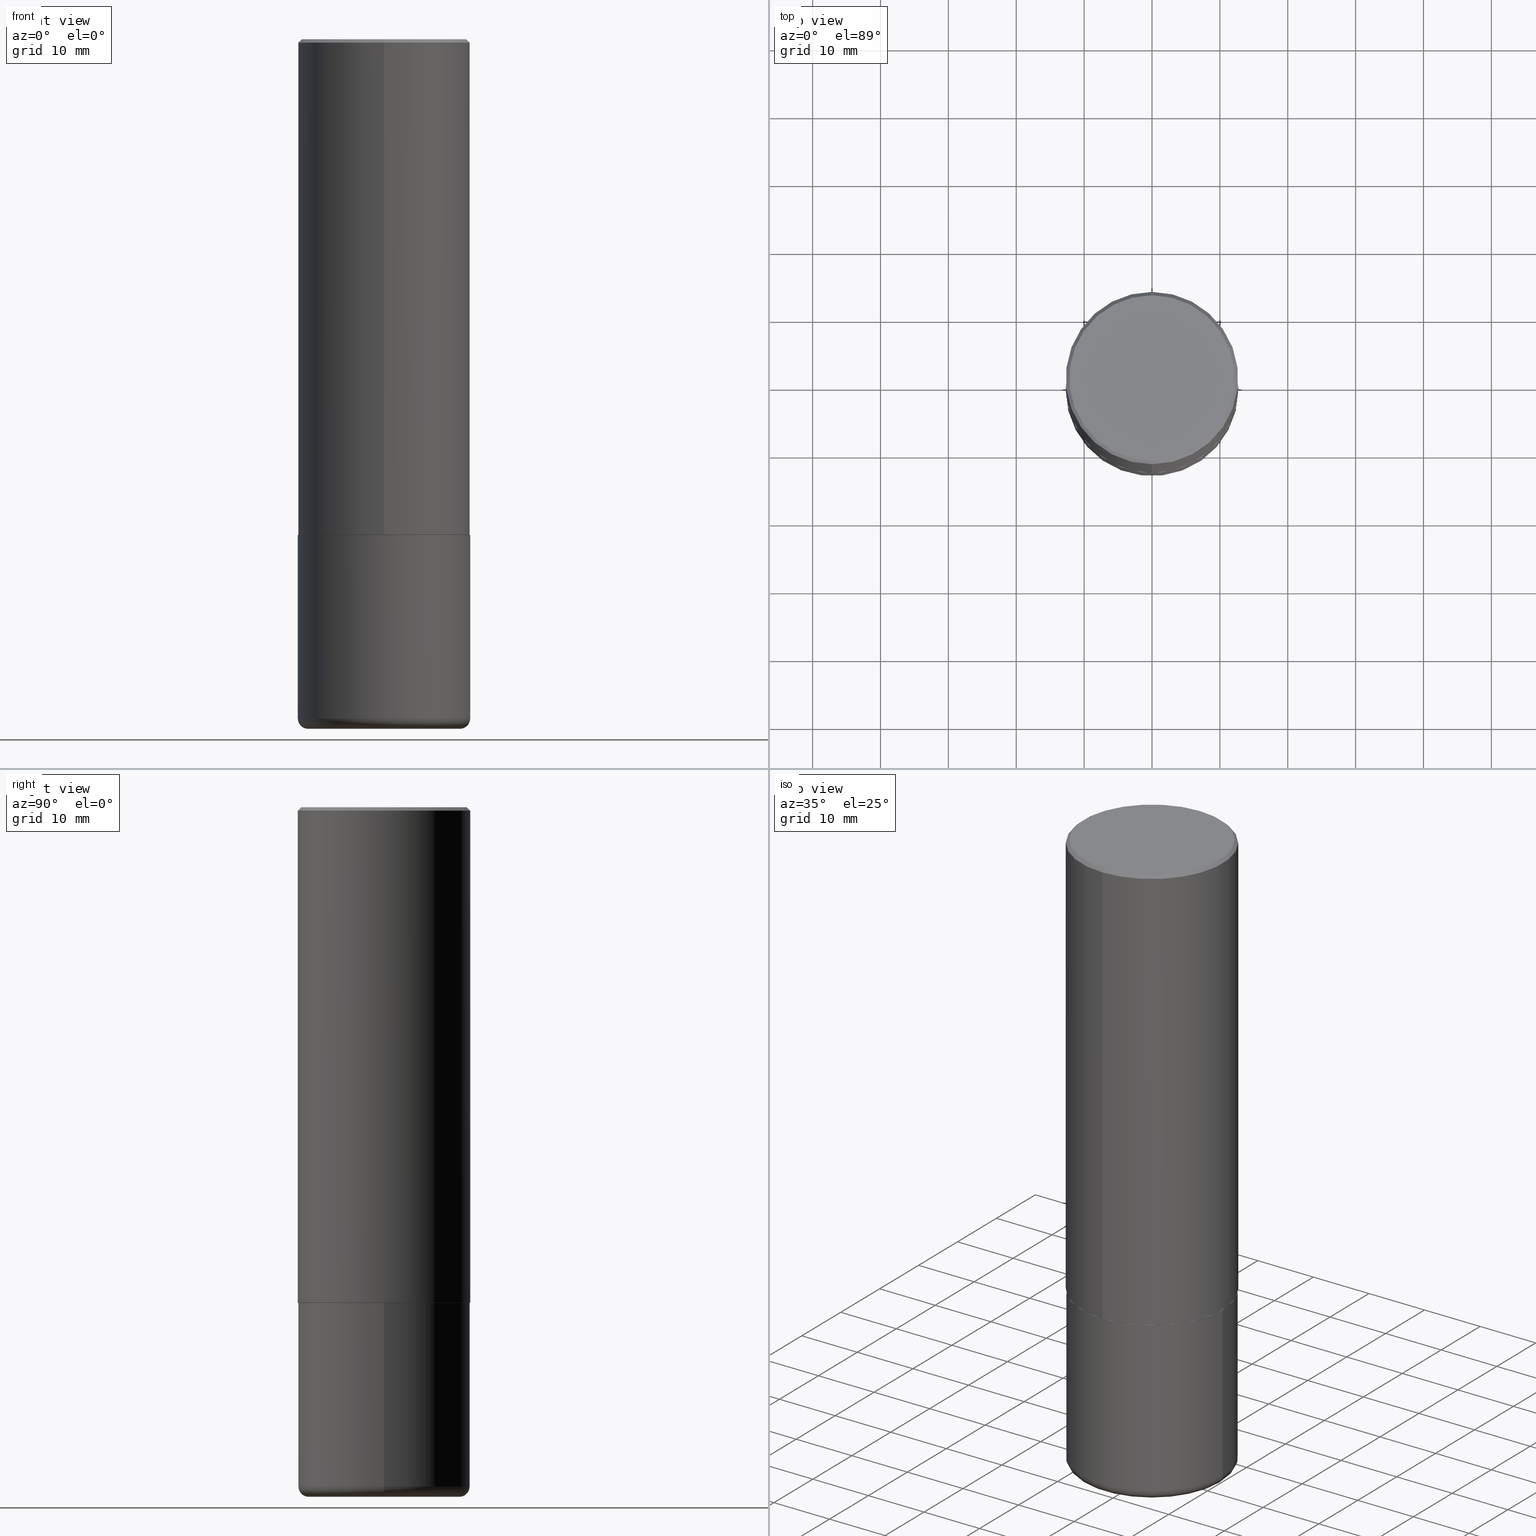
[diagram: canonical four-view strip — front | top / right | iso, engineering-drawing reading convention]
A machine part, canonical four-view strip (front | top / right | iso — engineering-drawing reading convention). The complete STEP part file that produces these views, byte-faithful:
ISO-10303-21;
HEADER;
FILE_DESCRIPTION (( 'STEP AP203' ),
    '1' );
FILE_NAME ('37125.STEP',
    '2024-03-01T20:36:01',
    ( '' ),
    ( '' ),
    'SwSTEP 2.0',
    'SolidWorks 2023',
    '' );
FILE_SCHEMA (( 'CONFIG_CONTROL_DESIGN' ));
ENDSEC;

DATA;
#1 = ORIENTED_EDGE ( 'NONE', *, *, #396, .F. ) ;
#2 = EDGE_CURVE ( 'NONE', #23, #84, #356, .T. ) ;
#3 = PERSON_AND_ORGANIZATION ( #291, #378 ) ;
#4 = CC_DESIGN_PERSON_AND_ORGANIZATION_ASSIGNMENT ( #67, #389, ( #255 ) ) ;
#5 = DIRECTION ( 'NONE',  ( -2.445184338623419792E-29, 3.491888712582412164E-15, 1.000000000000000000 ) ) ;
#6 = APPROVAL_ROLE ( '' ) ;
#7 = CARTESIAN_POINT ( 'NONE',  ( 3.421651712066270057E-15, 0.4799999999999998157, -1.419800293238684484E-15 ) ) ;
#8 = APPROVAL_STATUS ( 'not_yet_approved' ) ;
#9 = AXIS2_PLACEMENT_3D ( 'NONE', #322, #318, #32 ) ;
#10 = EDGE_CURVE ( 'NONE', #185, #320, #408, .T. ) ;
#11 = CARTESIAN_POINT ( 'NONE',  ( 9.781875224740547508E-29, -1.396592535537258391E-14, -4.000000000000000888 ) ) ;
#12 = CYLINDRICAL_SURFACE ( 'NONE', #209, 0.5000000000000002220 ) ;
#13 = DIRECTION ( 'NONE',  ( 1.000000000000000000, -6.982962677686266711E-15, 0.000000000000000000 ) ) ;
#14 = CIRCLE ( 'NONE', #89, 0.4989999999999999991 ) ;
#15 = CARTESIAN_POINT ( 'NONE',  ( 9.635147096369438236E-29, -1.375643647504199401E-14, -3.939999999999999947 ) ) ;
#16 = CARTESIAN_POINT ( 'NONE',  ( -3.361644018908049661E-15, -0.4799999999999998157, 1.932412870840429584E-15 ) ) ;
#17 = ORIENTED_EDGE ( 'NONE', *, *, #2, .F. ) ;
#18 = DIRECTION ( 'NONE',  ( -6.982962677686265133E-15, -1.000000000000000000, 3.491643216902135619E-15 ) ) ;
#19 = ORIENTED_EDGE ( 'NONE', *, *, #198, .F. ) ;
#20 = AXIS2_PLACEMENT_3D ( 'NONE', #165, #140, #72 ) ;
#21 = DIRECTION ( 'NONE',  ( -2.445468806185136597E-29, 3.491481338843145583E-15, 1.000000000000000000 ) ) ;
#22 = AXIS2_PLACEMENT_3D ( 'NONE', #163, #169, #42 ) ;
#23 = VERTEX_POINT ( 'NONE', #379 ) ;
#24 = ORIENTED_EDGE ( 'NONE', *, *, #303, .T. ) ;
#25 = ORIENTED_EDGE ( 'NONE', *, *, #10, .T. ) ;
#26 = EDGE_CURVE ( 'NONE', #155, #84, #203, .T. ) ;
#27 = ORIENTED_EDGE ( 'NONE', *, *, #375, .F. ) ;
#28 = CIRCLE ( 'NONE', #196, 0.4400000000000000022 ) ;
#29 = CC_DESIGN_SECURITY_CLASSIFICATION ( #45, ( #217 ) ) ;
#30 = DIMENSIONAL_EXPONENTS ( 1.000000000000000000, 0.000000000000000000, 0.000000000000000000, 0.000000000000000000, 0.000000000000000000, 0.000000000000000000, 0.000000000000000000 ) ;
#31 = EDGE_CURVE ( 'NONE', #270, #155, #122, .T. ) ;
#32 = DIRECTION ( 'NONE',  ( -6.982962677686265922E-15, -1.000000000000000000, 3.491888712582412558E-15 ) ) ;
#33 = CARTESIAN_POINT ( 'NONE',  ( 3.545608251442969735E-15, 0.4989999999999899516, -2.875000000000001332 ) ) ;
#34 = APPROVAL_ROLE ( '' ) ;
#35 = PLANE ( 'NONE',  #22 ) ;
#36 = CIRCLE ( 'NONE', #223, 0.4799999999999998157 ) ;
#37 = EDGE_CURVE ( 'NONE', #54, #23, #248, .T. ) ;
#38 = AXIS2_PLACEMENT_3D ( 'NONE', #116, #53, #211 ) ;
#39 = PERSON_AND_ORGANIZATION ( #291, #378 ) ;
#40 = CYLINDRICAL_SURFACE ( 'NONE', #121, 0.5000000000000000000 ) ;
#41 = DIRECTION ( 'NONE',  ( 0.000000000000000000, 0.000000000000000000, 1.000000000000000000 ) ) ;
#42 = DIRECTION ( 'NONE',  ( -1.000000000000000000, 6.982962677686265922E-15, -4.876176775795935793E-29 ) ) ;
#43 = FACE_OUTER_BOUND ( 'NONE', #81, .T. ) ;
#44 = AXIS2_PLACEMENT_3D ( 'NONE', #241, #177, #175 ) ;
#45 = SECURITY_CLASSIFICATION ( '', '', #164 ) ;
#46 = CARTESIAN_POINT ( 'NONE',  ( -0.4400000000000000022, -1.052163005713481670E-14, -4.000000000000000888 ) ) ;
#47 = DIRECTION ( 'NONE',  ( 2.438088387897960049E-29, -3.491481338843145188E-15, -1.000000000000000000 ) ) ;
#48 = DIRECTION ( 'NONE',  ( -6.982962677686265922E-15, -1.000000000000000000, 3.284787166730577015E-15 ) ) ;
#49 = AXIS2_PLACEMENT_3D ( 'NONE', #412, #125, #212 ) ;
#50 = LOCAL_TIME ( 15, 36, 1.000000000000000000, #392 ) ;
#51 = CARTESIAN_POINT ( 'NONE',  ( 0.5000000000000000000, -1.352949018801717646E-14, -2.875000000000000000 ) ) ;
#52 = ORIENTED_EDGE ( 'NONE', *, *, #375, .T. ) ;
#53 = DIRECTION ( 'NONE',  ( -2.445468806185136597E-29, 3.491481338843145583E-15, 1.000000000000000000 ) ) ;
#54 = VERTEX_POINT ( 'NONE', #158 ) ;
#55 = DIRECTION ( 'NONE',  ( 1.000000000000000000, -6.982962677686266711E-15, 0.000000000000000000 ) ) ;
#56 = ORIENTED_EDGE ( 'NONE', *, *, #414, .F. ) ;
#57 = AXIS2_PLACEMENT_3D ( 'NONE', #64, #41, #159 ) ;
#58 = EDGE_CURVE ( 'NONE', #270, #91, #184, .T. ) ;
#59 = CARTESIAN_POINT ( 'NONE',  ( -6.267161232665850175E-45, 8.949930368276549801E-31, 2.563062888008726491E-16 ) ) ;
#60 = FACE_OUTER_BOUND ( 'NONE', #101, .T. ) ;
#61 = DIRECTION ( 'NONE',  ( -2.445184338623419792E-29, 3.491888712582412164E-15, 1.000000000000000000 ) ) ;
#62 = CONICAL_SURFACE ( 'NONE', #82, 0.4989999999999999991, 0.7853981633977213939 ) ;
#63 = CARTESIAN_POINT ( 'NONE',  ( 4.890368677246865823E-31, -6.983777425164860418E-17, -0.02000000000000010797 ) ) ;
#64 = CARTESIAN_POINT ( 'NONE',  ( 0.000000000000000000, 0.000000000000000000, 0.000000000000000000 ) ) ;
#65 = ADVANCED_FACE ( 'NONE', ( #190 ), #66, .F. ) ;
#66 = PLANE ( 'NONE',  #9 ) ;
#67 = PERSON_AND_ORGANIZATION ( #291, #378 ) ;
#68 = CARTESIAN_POINT ( 'NONE',  ( -3.430248998885765387E-15, -0.5000000000000001110, -0.01999999999999835937 ) ) ;
#69 = PERSON_AND_ORGANIZATION ( #291, #378 ) ;
#70 = APPLICATION_CONTEXT ( 'configuration controlled 3d designs of mechanical parts and assemblies' ) ;
#71 = CARTESIAN_POINT ( 'NONE',  ( -3.491481338843134539E-15, -0.5000000000000002220, 1.745944356291206674E-15 ) ) ;
#72 = DIRECTION ( 'NONE',  ( 1.000000000000000000, -6.982962677686266711E-15, 4.876176775795935793E-29 ) ) ;
#73 = ADVANCED_FACE ( 'NONE', ( #413 ), #35, .F. ) ;
#74 = DIRECTION ( 'NONE',  ( -1.000000000000000000, 7.105427357600993970E-15, 0.000000000000000000 ) ) ;
#75 = VECTOR ( 'NONE', #265, 39.37007874015748143 ) ;
#76 = FACE_OUTER_BOUND ( 'NONE', #374, .T. ) ;
#77 = EDGE_CURVE ( 'NONE', #388, #372, #96, .T. ) ;
#78 = DIRECTION ( 'NONE',  ( -2.445184338623419792E-29, 3.491888712582412164E-15, 1.000000000000000000 ) ) ;
#79 = CC_DESIGN_PERSON_AND_ORGANIZATION_ASSIGNMENT ( #138, #99, ( #217 ) ) ;
#80 = DIRECTION ( 'NONE',  ( -2.445184338623419792E-29, 3.491888712582412164E-15, 1.000000000000000000 ) ) ;
#81 = EDGE_LOOP ( 'NONE', ( #126, #313, #187, #119 ) ) ;
#82 = AXIS2_PLACEMENT_3D ( 'NONE', #142, #5, #133 ) ;
#83 = DIRECTION ( 'NONE',  ( -6.982962677686265922E-15, -1.000000000000000000, 3.284787166730577015E-15 ) ) ;
#84 = VERTEX_POINT ( 'NONE', #107 ) ;
#85 = EDGE_CURVE ( 'NONE', #218, #388, #417, .T. ) ;
#86 = DIRECTION ( 'NONE',  ( -2.445184338623419792E-29, 3.491888712582412164E-15, 1.000000000000000000 ) ) ;
#87 = EDGE_CURVE ( 'NONE', #372, #388, #204, .T. ) ;
#88 = VERTEX_POINT ( 'NONE', #300 ) ;
#89 = AXIS2_PLACEMENT_3D ( 'NONE', #339, #401, #206 ) ;
#90 = CC_DESIGN_APPROVAL ( #346, ( #45 ) ) ;
#91 = VERTEX_POINT ( 'NONE', #7 ) ;
#92 = DIRECTION ( 'NONE',  ( -2.445184338623419792E-29, 3.491888712582412164E-15, 1.000000000000000000 ) ) ;
#93 = DIRECTION ( 'NONE',  ( -4.937700262165896205E-15, -0.7071067811867381980, 0.7071067811863568364 ) ) ;
#94 = PERSON_AND_ORGANIZATION_ROLE ( 'classification_officer' ) ;
#95 = ORIENTED_EDGE ( 'NONE', *, *, #26, .F. ) ;
#96 = CIRCLE ( 'NONE', #350, 0.5000000000000001110 ) ;
#97 = EDGE_CURVE ( 'NONE', #372, #253, #199, .T. ) ;
#98 = EDGE_LOOP ( 'NONE', ( #256, #152, #146, #343 ) ) ;
#99 = PERSON_AND_ORGANIZATION_ROLE ( 'design_supplier' ) ;
#100 = EDGE_CURVE ( 'NONE', #194, #253, #104, .T. ) ;
#101 = EDGE_LOOP ( 'NONE', ( #188, #250, #95, #19 ) ) ;
#102 = PERSON_AND_ORGANIZATION ( #291, #378 ) ;
#103 = CARTESIAN_POINT ( 'NONE',  ( 3.491481338843133750E-15, 0.5000000000000000000, -0.02000000000000185310 ) ) ;
#104 = CIRCLE ( 'NONE', #344, 0.5000000000000000000 ) ;
#105 = LOCAL_TIME ( 15, 36, 1.000000000000000000, #166 ) ;
#106 = FACE_OUTER_BOUND ( 'NONE', #252, .T. ) ;
#107 = CARTESIAN_POINT ( 'NONE',  ( 3.491481338843133750E-15, 0.5000000000000000000, -0.02000000000000185310 ) ) ;
#108 = FACE_OUTER_BOUND ( 'NONE', #276, .T. ) ;
#109 = AXIS2_PLACEMENT_3D ( 'NONE', #272, #381, #18 ) ;
#110 = ADVANCED_FACE ( 'NONE', ( #106 ), #12, .T. ) ;
#111 = CARTESIAN_POINT ( 'NONE',  ( 9.635147096369438236E-29, -1.375643647504199401E-14, -3.939999999999999947 ) ) ;
#112 = PRODUCT ( '37125', '37125', '', ( #193 ) ) ;
#113 = DIRECTION ( 'NONE',  ( -2.445184338623419792E-29, 3.491888712582412164E-15, 1.000000000000000000 ) ) ;
#114 = CARTESIAN_POINT ( 'NONE',  ( 9.781875224740547508E-29, -1.396592535537258391E-14, -4.000000000000000888 ) ) ;
#115 = CC_DESIGN_APPROVAL ( #221, ( #255 ) ) ;
#116 = CARTESIAN_POINT ( 'NONE',  ( 7.030722817782267716E-29, -1.003800884917404311E-14, -2.875000000000000000 ) ) ;
#117 = ORIENTED_EDGE ( 'NONE', *, *, #323, .T. ) ;
#118 = ADVANCED_FACE ( 'NONE', ( #76 ), #361, .T. ) ;
#119 = ORIENTED_EDGE ( 'NONE', *, *, #10, .F. ) ;
#120 = ORIENTED_EDGE ( 'NONE', *, *, #129, .F. ) ;
#121 = AXIS2_PLACEMENT_3D ( 'NONE', #395, #205, #237 ) ;
#122 = LINE ( 'NONE', #68, #331 ) ;
#123 = DIRECTION ( 'NONE',  ( 2.445184338623419231E-29, -3.491888712582412558E-15, -1.000000000000000000 ) ) ;
#124 = ORIENTED_EDGE ( 'NONE', *, *, #227, .T. ) ;
#125 = DIRECTION ( 'NONE',  ( -2.445184338623419792E-29, 3.491888712582412164E-15, 1.000000000000000000 ) ) ;
#126 = ORIENTED_EDGE ( 'NONE', *, *, #390, .T. ) ;
#127 = TOROIDAL_SURFACE ( 'NONE', #273, 0.4400000000000000022, 0.06000000000000024758 ) ;
#128 = DIRECTION ( 'NONE',  ( -6.982962677686265922E-15, -1.000000000000000000, 3.491888712582411769E-15 ) ) ;
#129 = EDGE_CURVE ( 'NONE', #88, #372, #305, .T. ) ;
#130 = CALENDAR_DATE ( 2024, 1, 3 ) ;
#131 = CARTESIAN_POINT ( 'NONE',  ( -3.484498376165376344E-15, -0.4990000000000100466, -2.874999999999998224 ) ) ;
#132 = APPROVAL_DATE_TIME ( #230, #154 ) ;
#133 = DIRECTION ( 'NONE',  ( -6.982962677686265922E-15, -1.000000000000000000, 3.284787166730577015E-15 ) ) ;
#134 = COORDINATED_UNIVERSAL_TIME_OFFSET ( 5, 0, .BEHIND. ) ;
#135 = CC_DESIGN_PERSON_AND_ORGANIZATION_ASSIGNMENT ( #39, #254, ( #217 ) ) ;
#136 = DIRECTION ( 'NONE',  ( -2.445468806185136597E-29, 3.491481338843145583E-15, 1.000000000000000000 ) ) ;
#137 = AXIS2_PLACEMENT_3D ( 'NONE', #150, #92, #48 ) ;
#138 = PERSON_AND_ORGANIZATION ( #291, #378 ) ;
#139 = DIRECTION ( 'NONE',  ( -2.445468806185136597E-29, 3.491481338843145583E-15, 1.000000000000000000 ) ) ;
#140 = DIRECTION ( 'NONE',  ( -2.445468806185136597E-29, 3.491481338843145583E-15, 1.000000000000000000 ) ) ;
#141 = ADVANCED_FACE ( 'NONE', ( #167 ), #40, .T. ) ;
#142 = CARTESIAN_POINT ( 'NONE',  ( 7.029904973542331656E-29, -1.003918004867443438E-14, -2.875000000000000000 ) ) ;
#143 = SHAPE_DEFINITION_REPRESENTATION ( #369, #213 ) ;
#144 = AXIS2_PLACEMENT_3D ( 'NONE', #15, #21, #404 ) ;
#145 = CARTESIAN_POINT ( 'NONE',  ( 9.635147096369438236E-29, -1.375643647504199401E-14, -3.939999999999999947 ) ) ;
#146 = ORIENTED_EDGE ( 'NONE', *, *, #129, .T. ) ;
#147 = FACE_OUTER_BOUND ( 'NONE', #98, .T. ) ;
#148 = EDGE_LOOP ( 'NONE', ( #315, #292 ) ) ;
#149 = VECTOR ( 'NONE', #288, 39.37007874015748143 ) ;
#150 = CARTESIAN_POINT ( 'NONE',  ( 7.029904973542331656E-29, -1.003918004867443438E-14, -2.875000000000000000 ) ) ;
#151 = ORIENTED_EDGE ( 'NONE', *, *, #31, .T. ) ;
#152 = ORIENTED_EDGE ( 'NONE', *, *, #179, .T. ) ;
#153 = ADVANCED_FACE ( 'NONE', ( #333 ), #202, .T. ) ;
#154 = APPROVAL ( #321, 'UNSPECIFIED' ) ;
#155 = VERTEX_POINT ( 'NONE', #302 ) ;
#156 = DIRECTION ( 'NONE',  ( -2.445184338623420072E-29, 3.491888712582412558E-15, 1.000000000000000000 ) ) ;
#157 = DIRECTION ( 'NONE',  ( -6.982962677686265922E-15, -1.000000000000000000, 3.491888712582411769E-15 ) ) ;
#158 = CARTESIAN_POINT ( 'NONE',  ( 3.549160965121771423E-15, 0.4989999999999899516, -2.875000000000001332 ) ) ;
#159 = DIRECTION ( 'NONE',  ( 1.000000000000000000, 0.000000000000000000, 0.000000000000000000 ) ) ;
#160 = DIRECTION ( 'NONE',  ( -2.445184338623419792E-29, 3.491888712582412164E-15, 1.000000000000000000 ) ) ;
#161 = COORDINATED_UNIVERSAL_TIME_OFFSET ( 5, 0, .BEHIND. ) ;
#162 = VECTOR ( 'NONE', #373, 39.37007874015748143 ) ;
#163 = CARTESIAN_POINT ( 'NONE',  ( 7.030722817782267716E-29, -1.003800884917404311E-14, -2.875000000000000000 ) ) ;
#164 = SECURITY_CLASSIFICATION_LEVEL ( 'unclassified' ) ;
#165 = CARTESIAN_POINT ( 'NONE',  ( 0.000000000000000000, 0.000000000000000000, 0.000000000000000000 ) ) ;
#166 = COORDINATED_UNIVERSAL_TIME_OFFSET ( 5, 0, .BEHIND. ) ;
#167 = FACE_OUTER_BOUND ( 'NONE', #338, .T. ) ;
#168 =( CONVERSION_BASED_UNIT ( 'INCH', #263 ) LENGTH_UNIT ( ) NAMED_UNIT ( #30 ) );
#169 = DIRECTION ( 'NONE',  ( 2.438088387897960049E-29, -3.491481338843145188E-15, -1.000000000000000000 ) ) ;
#170 = VECTOR ( 'NONE', #156, 39.37007874015748143 ) ;
#171 = CIRCLE ( 'NONE', #137, 0.4989999999999999991 ) ;
#172 = DIRECTION ( 'NONE',  ( 1.000000000000000000, -6.982962677686265133E-15, 0.000000000000000000 ) ) ;
#173 = LINE ( 'NONE', #103, #75 ) ;
#174 = EDGE_CURVE ( 'NONE', #91, #84, #173, .T. ) ;
#175 = DIRECTION ( 'NONE',  ( -6.982962677686265922E-15, -1.000000000000000000, 3.491888712582411769E-15 ) ) ;
#176 = CIRCLE ( 'NONE', #49, 0.5000000000000003331 ) ;
#177 = DIRECTION ( 'NONE',  ( -2.445184338623419792E-29, 3.491888712582412164E-15, 1.000000000000000000 ) ) ;
#178 = ORIENTED_EDGE ( 'NONE', *, *, #97, .F. ) ;
#179 = EDGE_CURVE ( 'NONE', #218, #88, #28, .T. ) ;
#180 = CARTESIAN_POINT ( 'NONE',  ( -6.267161232665850175E-45, 8.949930368276549801E-31, 2.563062888008726491E-16 ) ) ;
#181 = ORIENTED_EDGE ( 'NONE', *, *, #179, .F. ) ;
#182 = DIRECTION ( 'NONE',  ( 6.982962677686265133E-15, 1.000000000000000000, -3.491643216902135619E-15 ) ) ;
#183 = ORIENTED_EDGE ( 'NONE', *, *, #85, .T. ) ;
#184 = CIRCLE ( 'NONE', #316, 0.4799999999999998157 ) ;
#185 = VERTEX_POINT ( 'NONE', #330 ) ;
#186 = CC_DESIGN_DATE_AND_TIME_ASSIGNMENT ( #257, #415, ( #255 ) ) ;
#187 = ORIENTED_EDGE ( 'NONE', *, *, #245, .F. ) ;
#188 = ORIENTED_EDGE ( 'NONE', *, *, #245, .T. ) ;
#189 = FACE_OUTER_BOUND ( 'NONE', #380, .T. ) ;
#190 = FACE_OUTER_BOUND ( 'NONE', #148, .T. ) ;
#191 = ADVANCED_FACE ( 'NONE', ( #43 ), #62, .T. ) ;
#192 = DIRECTION ( 'NONE',  ( -4.851104656540951653E-15, -0.7071067811865482389, -0.7071067811865467956 ) ) ;
#193 = MECHANICAL_CONTEXT ( 'NONE', #70, 'mechanical' ) ;
#194 = VERTEX_POINT ( 'NONE', #231 ) ;
#195 = PERSON_AND_ORGANIZATION ( #291, #378 ) ;
#196 = AXIS2_PLACEMENT_3D ( 'NONE', #11, #295, #13 ) ;
#197 = EDGE_LOOP ( 'NONE', ( #307, #416 ) ) ;
#198 = EDGE_CURVE ( 'NONE', #320, #155, #359, .T. ) ;
#199 = LINE ( 'NONE', #366, #244 ) ;
#200 = CALENDAR_DATE ( 2024, 1, 3 ) ;
#201 = DIRECTION ( 'NONE',  ( 1.000000000000000000, -6.982962677686265133E-15, 0.000000000000000000 ) ) ;
#202 = PLANE ( 'NONE',  #377 ) ;
#203 = CIRCLE ( 'NONE', #383, 0.5000000000000001110 ) ;
#204 = CIRCLE ( 'NONE', #405, 0.5000000000000001110 ) ;
#205 = DIRECTION ( 'NONE',  ( -2.445468806185136597E-29, 3.491481338843145583E-15, 1.000000000000000000 ) ) ;
#206 = DIRECTION ( 'NONE',  ( -6.982962677686265922E-15, -1.000000000000000000, 3.284787166730577015E-15 ) ) ;
#207 = CARTESIAN_POINT ( 'NONE',  ( -0.5000000000000000000, 3.552713678800500929E-15, -2.459467545127452891E-29 ) ) ;
#208 = ORIENTED_EDGE ( 'NONE', *, *, #37, .F. ) ;
#209 = AXIS2_PLACEMENT_3D ( 'NONE', #258, #78, #391 ) ;
#210 = CC_DESIGN_PERSON_AND_ORGANIZATION_ASSIGNMENT ( #69, #387, ( #112 ) ) ;
#211 = DIRECTION ( 'NONE',  ( 1.000000000000000000, -6.982962677686266711E-15, 0.000000000000000000 ) ) ;
#212 = DIRECTION ( 'NONE',  ( -6.982962677686265922E-15, -1.000000000000000000, 3.278217592397113496E-15 ) ) ;
#213 = ADVANCED_BREP_SHAPE_REPRESENTATION ( '37125', ( #293, #284, #57 ), #351 ) ;
#214 = ADVANCED_FACE ( 'NONE', ( #108 ), #385, .T. ) ;
#215 = ORIENTED_EDGE ( 'NONE', *, *, #198, .T. ) ;
#216 = AXIS2_PLACEMENT_3D ( 'NONE', #240, #365, #74 ) ;
#217 = PRODUCT_DEFINITION_FORMATION_WITH_SPECIFIED_SOURCE ( 'ANY', '', #112, .NOT_KNOWN. ) ;
#218 = VERTEX_POINT ( 'NONE', #46 ) ;
#219 =( LENGTH_UNIT ( ) NAMED_UNIT ( * ) SI_UNIT ( $, .METRE. ) );
#220 = ORIENTED_EDGE ( 'NONE', *, *, #58, .F. ) ;
#221 = APPROVAL ( #8, 'UNSPECIFIED' ) ;
#222 = DATE_AND_TIME ( #329, #262 ) ;
#223 = AXIS2_PLACEMENT_3D ( 'NONE', #180, #86, #157 ) ;
#224 = ORIENTED_EDGE ( 'NONE', *, *, #174, .T. ) ;
#225 = ORIENTED_EDGE ( 'NONE', *, *, #87, .T. ) ;
#226 = DATE_AND_TIME ( #319, #105 ) ;
#227 = EDGE_CURVE ( 'NONE', #23, #320, #238, .T. ) ;
#228 = ADVANCED_FACE ( 'NONE', ( #189 ), #260, .T. ) ;
#229 = ORIENTED_EDGE ( 'NONE', *, *, #26, .T. ) ;
#230 = DATE_AND_TIME ( #130, #397 ) ;
#231 = CARTESIAN_POINT ( 'NONE',  ( -0.5000000000000000000, -8.344508983307518419E-15, -2.875000000000000000 ) ) ;
#232 = APPROVAL_PERSON_ORGANIZATION ( #233, #221, #418 ) ;
#233 = PERSON_AND_ORGANIZATION ( #291, #378 ) ;
#234 = DIRECTION ( 'NONE',  ( -2.445468806185136597E-29, 3.491481338843145583E-15, 1.000000000000000000 ) ) ;
#235 = DIRECTION ( 'NONE',  ( 2.445184338623419792E-29, -3.491888712582412164E-15, -1.000000000000000000 ) ) ;
#236 = ADVANCED_FACE ( 'NONE', ( #410 ), #285, .F. ) ;
#237 = DIRECTION ( 'NONE',  ( 1.000000000000000000, -6.982962677686266711E-15, 4.876176775795935793E-29 ) ) ;
#238 = CIRCLE ( 'NONE', #290, 0.5000000000000003331 ) ;
#239 = APPROVAL_PERSON_ORGANIZATION ( #3, #346, #6 ) ;
#240 = CARTESIAN_POINT ( 'NONE',  ( -0.4400000000000000022, -1.063004843769755357E-14, -3.939999999999999947 ) ) ;
#241 = CARTESIAN_POINT ( 'NONE',  ( 0.000000000000000000, 0.000000000000000000, 0.000000000000000000 ) ) ;
#242 = DIRECTION ( 'NONE',  ( -2.445468806185136597E-29, 3.491481338843145583E-15, 1.000000000000000000 ) ) ;
#243 = DESIGN_CONTEXT ( 'detailed design', #283, 'design' ) ;
#244 = VECTOR ( 'NONE', #393, 39.37007874015748143 ) ;
#245 = EDGE_CURVE ( 'NONE', #320, #23, #176, .T. ) ;
#246 = ORIENTED_EDGE ( 'NONE', *, *, #227, .F. ) ;
#247 = AXIS2_PLACEMENT_3D ( 'NONE', #114, #242, #55 ) ;
#248 = LINE ( 'NONE', #33, #149 ) ;
#249 = DIRECTION ( 'NONE',  ( -2.445468806185136597E-29, 3.491481338843145583E-15, 1.000000000000000000 ) ) ;
#250 = ORIENTED_EDGE ( 'NONE', *, *, #2, .T. ) ;
#251 = FACE_OUTER_BOUND ( 'NONE', #340, .T. ) ;
#252 = EDGE_LOOP ( 'NONE', ( #17, #124, #215, #27 ) ) ;
#253 = VERTEX_POINT ( 'NONE', #51 ) ;
#254 = PERSON_AND_ORGANIZATION_ROLE ( 'creator' ) ;
#255 = PRODUCT_DEFINITION ( 'UNKNOWN', '', #217, #243 ) ;
#256 = ORIENTED_EDGE ( 'NONE', *, *, #85, .F. ) ;
#257 = DATE_AND_TIME ( #200, #50 ) ;
#258 = CARTESIAN_POINT ( 'NONE',  ( 0.000000000000000000, 0.000000000000000000, 0.000000000000000000 ) ) ;
#259 =( NAMED_UNIT ( * ) SI_UNIT ( $, .STERADIAN. ) SOLID_ANGLE_UNIT ( ) );
#260 = CONICAL_SURFACE ( 'NONE', #299, 0.5000000000000001110, 0.7853981633974458365 ) ;
#261 = DIRECTION ( 'NONE',  ( 1.000000000000000000, -6.982962677686266711E-15, 0.000000000000000000 ) ) ;
#262 = LOCAL_TIME ( 15, 36, 1.000000000000000000, #134 ) ;
#263 = LENGTH_MEASURE_WITH_UNIT ( LENGTH_MEASURE( 0.02539999999999999897 ), #219 );
#264 = DIRECTION ( 'NONE',  ( -2.445184338623420072E-29, 3.491888712582412558E-15, 1.000000000000000000 ) ) ;
#265 = DIRECTION ( 'NONE',  ( 4.937700262164535420E-15, 0.7071067811865433539, -0.7071067811865516806 ) ) ;
#266 = CARTESIAN_POINT ( 'NONE',  ( 6.313440210036972125E-29, -1.893292170748942541E-14, -4.000000000000000000 ) ) ;
#267 = CC_DESIGN_APPROVAL ( #154, ( #217 ) ) ;
#268 = PRODUCT_RELATED_PRODUCT_CATEGORY ( 'detail', '', ( #112 ) ) ;
#269 = CARTESIAN_POINT ( 'NONE',  ( 0.5000000000000001110, -1.724791781388512737E-14, -3.939999999999999947 ) ) ;
#270 = VERTEX_POINT ( 'NONE', #16 ) ;
#271 = CARTESIAN_POINT ( 'NONE',  ( -3.491481338843065119E-15, -0.5000000000000103251, -2.873999999999998334 ) ) ;
#272 = CARTESIAN_POINT ( 'NONE',  ( 4.890368677246865823E-31, -6.983777425164860418E-17, -0.02000000000000010797 ) ) ;
#273 = AXIS2_PLACEMENT_3D ( 'NONE', #145, #249, #317 ) ;
#274 = CIRCLE ( 'NONE', #38, 0.5000000000000000000 ) ;
#275 = DIRECTION ( 'NONE',  ( 6.982962677686265922E-15, 1.000000000000000000, -3.491888712582412558E-15 ) ) ;
#276 = EDGE_LOOP ( 'NONE', ( #278, #279, #224, #52 ) ) ;
#277 = CC_DESIGN_DATE_AND_TIME_ASSIGNMENT ( #226, #294, ( #45 ) ) ;
#278 = ORIENTED_EDGE ( 'NONE', *, *, #31, .F. ) ;
#279 = ORIENTED_EDGE ( 'NONE', *, *, #341, .F. ) ;
#280 = AXIS2_PLACEMENT_3D ( 'NONE', #394, #235, #362 ) ;
#281 = AXIS2_PLACEMENT_3D ( 'NONE', #399, #113, #83 ) ;
#282 = ORIENTED_EDGE ( 'NONE', *, *, #303, .F. ) ;
#283 = APPLICATION_CONTEXT ( 'configuration controlled 3d designs of mechanical parts and assemblies' ) ;
#284 = MANIFOLD_SOLID_BREP ( 'Body-Move/Copy2[2]', #298 ) ;
#285 = PLANE ( 'NONE',  #337 ) ;
#286 = EDGE_LOOP ( 'NONE', ( #1, #181 ) ) ;
#287 = APPLICATION_PROTOCOL_DEFINITION ( 'international standard', 'config_control_design', 1994, #70 ) ;
#288 = DIRECTION ( 'NONE',  ( 5.024295867789434219E-15, 0.7071067811867430830, 0.7071067811863519514 ) ) ;
#289 =( NAMED_UNIT ( * ) PLANE_ANGLE_UNIT ( ) SI_UNIT ( $, .RADIAN. ) );
#290 = AXIS2_PLACEMENT_3D ( 'NONE', #335, #80, #342 ) ;
#291 = PERSON ( 'UNSPECIFIED', 'UNSPECIFIED', 'UNSPECIFIED', ('UNSPECIFIED'), ('UNSPECIFIED'), ('UNSPECIFIED') ) ;
#292 = ORIENTED_EDGE ( 'NONE', *, *, #323, .F. ) ;
#293 = MANIFOLD_SOLID_BREP ( 'Body-Move/Copy2[1]', #384 ) ;
#294 = DATE_TIME_ROLE ( 'classification_date' ) ;
#295 = DIRECTION ( 'NONE',  ( -2.445468806185136597E-29, 3.491481338843145583E-15, 1.000000000000000000 ) ) ;
#296 = APPROVAL_STATUS ( 'not_yet_approved' ) ;
#297 = DIRECTION ( 'NONE',  ( -1.000000000000000000, 6.982962677686265922E-15, -4.876176775795935793E-29 ) ) ;
#298 = CLOSED_SHELL ( 'NONE', ( #191, #334, #228, #214, #110, #407, #65, #236 ) ) ;
#299 = AXIS2_PLACEMENT_3D ( 'NONE', #306, #304, #182 ) ;
#300 = CARTESIAN_POINT ( 'NONE',  ( 0.4400000000000000022, -1.703842893355454063E-14, -4.000000000000000888 ) ) ;
#301 = CARTESIAN_POINT ( 'NONE',  ( 9.635147096369438236E-29, -1.375643647504199401E-14, -3.939999999999999947 ) ) ;
#302 = CARTESIAN_POINT ( 'NONE',  ( -3.430248998885765387E-15, -0.5000000000000001110, -0.01999999999999835937 ) ) ;
#303 = EDGE_CURVE ( 'NONE', #388, #194, #308, .T. ) ;
#304 = DIRECTION ( 'NONE',  ( 2.445184338623419792E-29, -3.491888712582412164E-15, -1.000000000000000000 ) ) ;
#305 = CIRCLE ( 'NONE', #358, 0.06000000000000024758 ) ;
#306 = CARTESIAN_POINT ( 'NONE',  ( 4.890368677246865823E-31, -6.983777425164860418E-17, -0.02000000000000010797 ) ) ;
#307 = ORIENTED_EDGE ( 'NONE', *, *, #414, .T. ) ;
#308 = LINE ( 'NONE', #207, #162 ) ;
#309 = ORIENTED_EDGE ( 'NONE', *, *, #77, .T. ) ;
#310 = VECTOR ( 'NONE', #264, 39.37007874015748143 ) ;
#311 = UNCERTAINTY_MEASURE_WITH_UNIT (LENGTH_MEASURE( 1.000000000000000082E-05 ), #168, 'distance_accuracy_value', 'NONE');
#312 = APPROVAL_PERSON_ORGANIZATION ( #102, #154, #34 ) ;
#313 = ORIENTED_EDGE ( 'NONE', *, *, #37, .T. ) ;
#314 = CC_DESIGN_PERSON_AND_ORGANIZATION_ASSIGNMENT ( #195, #94, ( #45 ) ) ;
#315 = ORIENTED_EDGE ( 'NONE', *, *, #390, .F. ) ;
#316 = AXIS2_PLACEMENT_3D ( 'NONE', #59, #61, #128 ) ;
#317 = DIRECTION ( 'NONE',  ( 1.000000000000000000, -6.982962677686266711E-15, 4.883557194083113462E-29 ) ) ;
#318 = DIRECTION ( 'NONE',  ( -2.445184338623419231E-29, 3.491888712582412558E-15, 1.000000000000000000 ) ) ;
#319 = CALENDAR_DATE ( 2024, 1, 3 ) ;
#320 = VERTEX_POINT ( 'NONE', #271 ) ;
#321 = APPROVAL_STATUS ( 'not_yet_approved' ) ;
#322 = CARTESIAN_POINT ( 'NONE',  ( 7.029904973542331656E-29, -1.003918004867443438E-14, -2.875000000000000000 ) ) ;
#323 = EDGE_CURVE ( 'NONE', #54, #185, #171, .T. ) ;
#324 = APPROVAL_DATE_TIME ( #360, #221 ) ;
#325 = CIRCLE ( 'NONE', #247, 0.4400000000000000022 ) ;
#326 = DIRECTION ( 'NONE',  ( -6.982962677686266711E-15, -1.000000000000000000, 3.491481338843145583E-15 ) ) ;
#327 = CALENDAR_DATE ( 2024, 1, 3 ) ;
#328 = CARTESIAN_POINT ( 'NONE',  ( 7.030722817782267716E-29, -1.003800884917404311E-14, -2.875000000000000000 ) ) ;
#329 = CALENDAR_DATE ( 2024, 1, 3 ) ;
#330 = CARTESIAN_POINT ( 'NONE',  ( -3.484498376165376344E-15, -0.4990000000000100466, -2.874999999999998224 ) ) ;
#331 = VECTOR ( 'NONE', #192, 39.37007874015748143 ) ;
#332 = DIRECTION ( 'NONE',  ( 1.000000000000000000, -6.982962677686271444E-15, 0.000000000000000000 ) ) ;
#333 = FACE_OUTER_BOUND ( 'NONE', #286, .T. ) ;
#334 = ADVANCED_FACE ( 'NONE', ( #60 ), #367, .T. ) ;
#335 = CARTESIAN_POINT ( 'NONE',  ( 7.027459789203708394E-29, -1.003568815996185455E-14, -2.874000000000000110 ) ) ;
#336 = CARTESIAN_POINT ( 'NONE',  ( -0.5000000000000001110, -1.020372279624149151E-14, -3.939999999999999947 ) ) ;
#337 = AXIS2_PLACEMENT_3D ( 'NONE', #348, #123, #275 ) ;
#338 = EDGE_LOOP ( 'NONE', ( #225, #24, #56, #178 ) ) ;
#339 = CARTESIAN_POINT ( 'NONE',  ( 7.029904973542331656E-29, -1.003918004867443438E-14, -2.875000000000000000 ) ) ;
#340 = EDGE_LOOP ( 'NONE', ( #349, #183, #406, #120 ) ) ;
#341 = EDGE_CURVE ( 'NONE', #91, #270, #36, .T. ) ;
#342 = DIRECTION ( 'NONE',  ( -6.982962677686265922E-15, -1.000000000000000000, 3.278217592397113496E-15 ) ) ;
#343 = ORIENTED_EDGE ( 'NONE', *, *, #77, .F. ) ;
#344 = AXIS2_PLACEMENT_3D ( 'NONE', #328, #136, #261 ) ;
#345 = ORIENTED_EDGE ( 'NONE', *, *, #174, .F. ) ;
#346 = APPROVAL ( #296, 'UNSPECIFIED' ) ;
#347 = ORIENTED_EDGE ( 'NONE', *, *, #100, .F. ) ;
#348 = CARTESIAN_POINT ( 'NONE',  ( 3.351822085289406364E-15, 0.4799999999999998157, -1.547953437639120956E-15 ) ) ;
#349 = ORIENTED_EDGE ( 'NONE', *, *, #396, .T. ) ;
#350 = AXIS2_PLACEMENT_3D ( 'NONE', #301, #139, #201 ) ;
#351 =( GEOMETRIC_REPRESENTATION_CONTEXT ( 3 ) GLOBAL_UNCERTAINTY_ASSIGNED_CONTEXT ( ( #311 ) ) GLOBAL_UNIT_ASSIGNED_CONTEXT ( ( #168, #289, #259 ) ) REPRESENTATION_CONTEXT ( 'NONE', 'WORKASPACE' ) );
#352 = APPROVAL_DATE_TIME ( #222, #346 ) ;
#353 = CARTESIAN_POINT ( 'NONE',  ( 3.552713678800501718E-15, 0.5000000000000002220, -1.745944356291206674E-15 ) ) ;
#354 = DIRECTION ( 'NONE',  ( -6.982962677686265133E-15, -1.000000000000000000, 3.491643216902135619E-15 ) ) ;
#355 = APPLICATION_PROTOCOL_DEFINITION ( 'international standard', 'config_control_design', 1994, #283 ) ;
#356 = LINE ( 'NONE', #353, #170 ) ;
#357 = COORDINATED_UNIVERSAL_TIME_OFFSET ( 5, 0, .BEHIND. ) ;
#358 = AXIS2_PLACEMENT_3D ( 'NONE', #398, #326, #332 ) ;
#359 = LINE ( 'NONE', #71, #310 ) ;
#360 = DATE_AND_TIME ( #327, #364 ) ;
#361 = CYLINDRICAL_SURFACE ( 'NONE', #20, 0.5000000000000000000 ) ;
#362 = DIRECTION ( 'NONE',  ( 6.982962677686265133E-15, 1.000000000000000000, -3.491643216902135619E-15 ) ) ;
#363 = CIRCLE ( 'NONE', #109, 0.5000000000000001110 ) ;
#364 = LOCAL_TIME ( 15, 36, 1.000000000000000000, #357 ) ;
#365 = DIRECTION ( 'NONE',  ( 7.105427357601001859E-15, 1.000000000000000000, -3.491481338843145583E-15 ) ) ;
#366 = CARTESIAN_POINT ( 'NONE',  ( 0.5000000000000000000, -3.491481338843133355E-15, 2.438088387897967896E-29 ) ) ;
#367 = CYLINDRICAL_SURFACE ( 'NONE', #44, 0.5000000000000002220 ) ;
#368 = ADVANCED_FACE ( 'NONE', ( #251 ), #127, .T. ) ;
#369 = PRODUCT_DEFINITION_SHAPE ( 'NONE', 'NONE',  #255 ) ;
#370 = FACE_OUTER_BOUND ( 'NONE', #400, .T. ) ;
#371 = TOROIDAL_SURFACE ( 'NONE', #144, 0.4400000000000000022, 0.06000000000000024758 ) ;
#372 = VERTEX_POINT ( 'NONE', #269 ) ;
#373 = DIRECTION ( 'NONE',  ( -2.445468806185136877E-29, 3.491481338843145188E-15, 1.000000000000000000 ) ) ;
#374 = EDGE_LOOP ( 'NONE', ( #282, #309, #411, #347 ) ) ;
#375 = EDGE_CURVE ( 'NONE', #84, #155, #363, .T. ) ;
#376 = EDGE_LOOP ( 'NONE', ( #386, #382 ) ) ;
#377 = AXIS2_PLACEMENT_3D ( 'NONE', #266, #47, #297 ) ;
#378 = ORGANIZATION ( 'UNSPECIFIED', 'UNSPECIFIED', '' ) ;
#379 = CARTESIAN_POINT ( 'NONE',  ( 3.552713678800538006E-15, 0.4999999999999903411, -2.874000000000001442 ) ) ;
#380 = EDGE_LOOP ( 'NONE', ( #220, #151, #229, #345 ) ) ;
#381 = DIRECTION ( 'NONE',  ( -2.445184338623419792E-29, 3.491888712582412164E-15, 1.000000000000000000 ) ) ;
#382 = ORIENTED_EDGE ( 'NONE', *, *, #58, .T. ) ;
#383 = AXIS2_PLACEMENT_3D ( 'NONE', #63, #160, #354 ) ;
#384 = CLOSED_SHELL ( 'NONE', ( #141, #368, #73, #118, #402, #153 ) ) ;
#385 = CONICAL_SURFACE ( 'NONE', #280, 0.5000000000000001110, 0.7853981633974458365 ) ;
#386 = ORIENTED_EDGE ( 'NONE', *, *, #341, .T. ) ;
#387 = PERSON_AND_ORGANIZATION_ROLE ( 'design_owner' ) ;
#388 = VERTEX_POINT ( 'NONE', #336 ) ;
#389 = PERSON_AND_ORGANIZATION_ROLE ( 'creator' ) ;
#390 = EDGE_CURVE ( 'NONE', #185, #54, #14, .T. ) ;
#391 = DIRECTION ( 'NONE',  ( -6.982962677686265922E-15, -1.000000000000000000, 3.491888712582411769E-15 ) ) ;
#392 = COORDINATED_UNIVERSAL_TIME_OFFSET ( 5, 0, .BEHIND. ) ;
#393 = DIRECTION ( 'NONE',  ( -2.445468806185136877E-29, 3.491481338843145188E-15, 1.000000000000000000 ) ) ;
#394 = CARTESIAN_POINT ( 'NONE',  ( 4.890368677246865823E-31, -6.983777425164860418E-17, -0.02000000000000010797 ) ) ;
#395 = CARTESIAN_POINT ( 'NONE',  ( 0.000000000000000000, 0.000000000000000000, 0.000000000000000000 ) ) ;
#396 = EDGE_CURVE ( 'NONE', #88, #218, #325, .T. ) ;
#397 = LOCAL_TIME ( 15, 36, 1.000000000000000000, #161 ) ;
#398 = CARTESIAN_POINT ( 'NONE',  ( 0.4400000000000000022, -1.682894005322395074E-14, -3.939999999999999947 ) ) ;
#399 = CARTESIAN_POINT ( 'NONE',  ( 7.029904973542331656E-29, -1.003918004867443438E-14, -2.875000000000000000 ) ) ;
#400 = EDGE_LOOP ( 'NONE', ( #208, #117, #25, #246 ) ) ;
#401 = DIRECTION ( 'NONE',  ( -2.445184338623419792E-29, 3.491888712582412164E-15, 1.000000000000000000 ) ) ;
#402 = ADVANCED_FACE ( 'NONE', ( #147 ), #371, .T. ) ;
#403 = VECTOR ( 'NONE', #93, 39.37007874015748143 ) ;
#404 = DIRECTION ( 'NONE',  ( 1.000000000000000000, -6.982962677686266711E-15, 4.883557194083113462E-29 ) ) ;
#405 = AXIS2_PLACEMENT_3D ( 'NONE', #111, #234, #172 ) ;
#406 = ORIENTED_EDGE ( 'NONE', *, *, #87, .F. ) ;
#407 = ADVANCED_FACE ( 'NONE', ( #370 ), #409, .T. ) ;
#408 = LINE ( 'NONE', #131, #403 ) ;
#409 = CONICAL_SURFACE ( 'NONE', #281, 0.4989999999999999991, 0.7853981633977213939 ) ;
#410 = FACE_OUTER_BOUND ( 'NONE', #376, .T. ) ;
#411 = ORIENTED_EDGE ( 'NONE', *, *, #97, .T. ) ;
#412 = CARTESIAN_POINT ( 'NONE',  ( 7.027459789203708394E-29, -1.003568815996185455E-14, -2.874000000000000110 ) ) ;
#413 = FACE_OUTER_BOUND ( 'NONE', #197, .T. ) ;
#414 = EDGE_CURVE ( 'NONE', #253, #194, #274, .T. ) ;
#415 = DATE_TIME_ROLE ( 'creation_date' ) ;
#416 = ORIENTED_EDGE ( 'NONE', *, *, #100, .T. ) ;
#417 = CIRCLE ( 'NONE', #216, 0.06000000000000024758 ) ;
#418 = APPROVAL_ROLE ( '' ) ;
ENDSEC;
END-ISO-10303-21;
